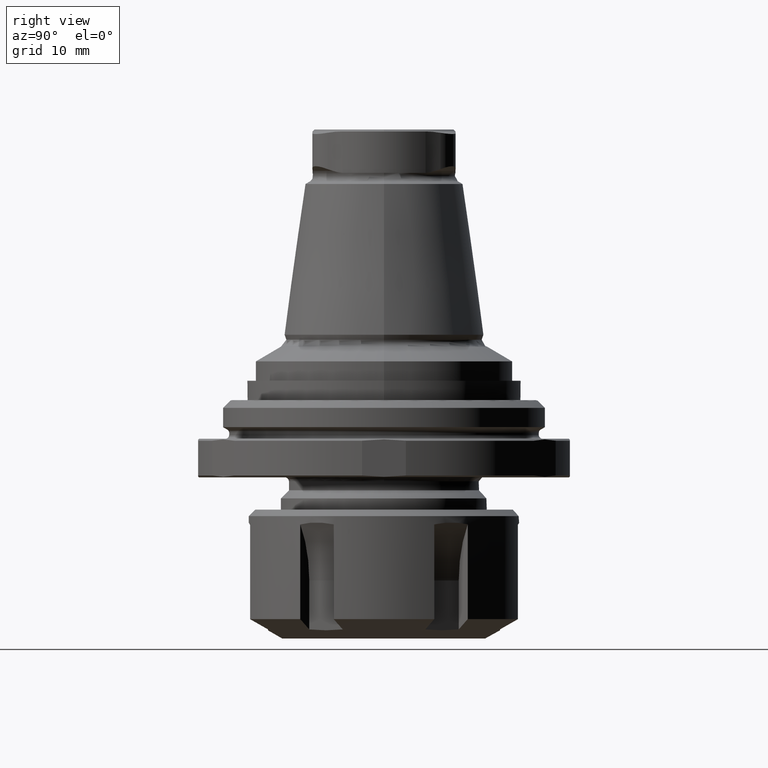
[diagram: clean part render]
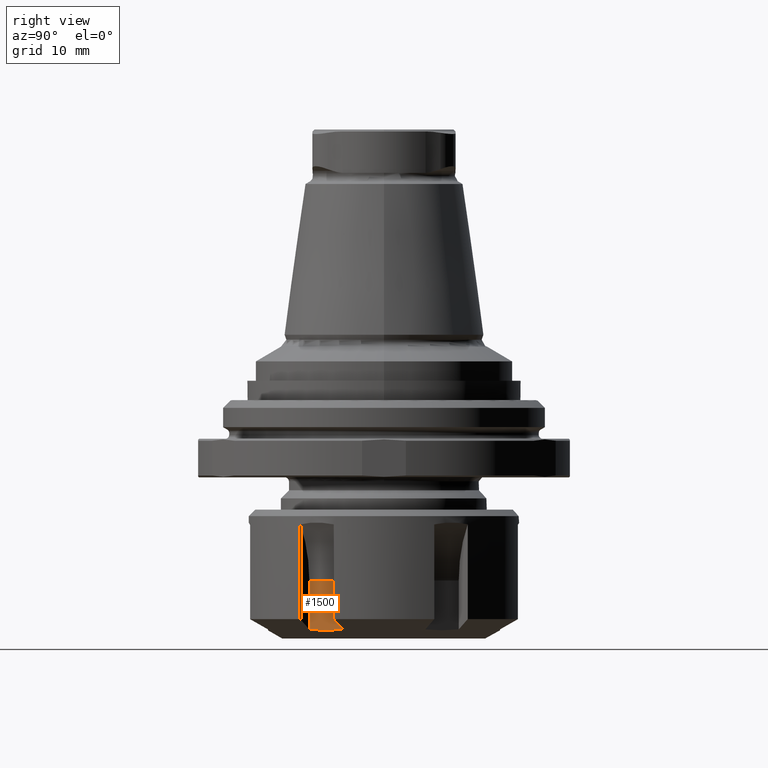
[diagram: same view with one face highlighted and labeled with its STEP entity id]
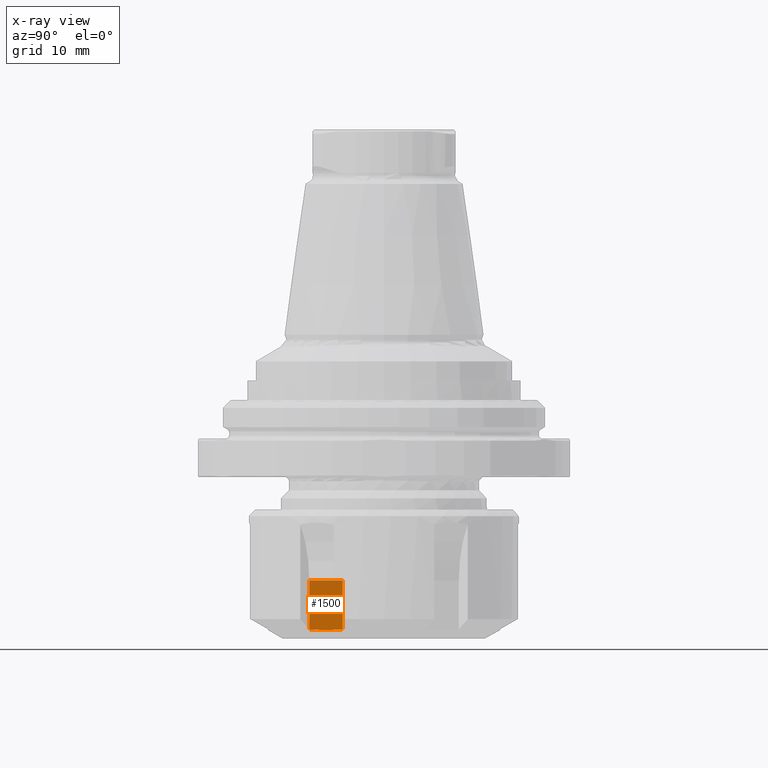
[diagram: x-ray of the same camera — body ghosted, the highlighted face saturated]
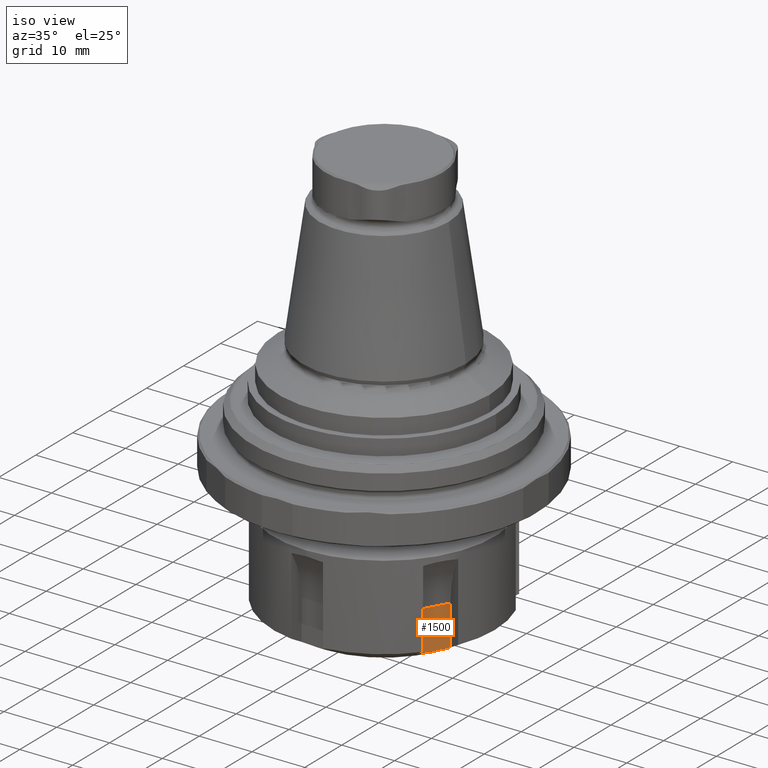
[diagram: same view with one face highlighted and labeled with its STEP entity id]
A machine part, right view. The second image highlights one B-rep face of the part: STEP entity #1500.
The next image is the same camera in x-ray: the body ghosted, the highlighted face saturated — about 0% of this face is hidden behind the body in this view.
A second angle (iso view) of the same face is appended — the face is thin or edge-on in the first view.
In plain terms, the highlighted planar face has unit normal (-0.866, 0.5, 0).
Its self-contained STEP definition (entity closure, byte-faithful):
#46=B_SPLINE_CURVE_WITH_KNOTS('',3,(#2461,#2462,#2463,#2464),
 .UNSPECIFIED.,.F.,.F.,(4,4),(0.00754768016302608,0.0105290968518202),
 .UNSPECIFIED.);
#47=B_SPLINE_CURVE_WITH_KNOTS('',3,(#2466,#2467,#2468,#2469),
 .UNSPECIFIED.,.F.,.F.,(4,4),(0.00454577362923761,0.00754768016302608),
 .UNSPECIFIED.);
#91=LINE('',#2247,#149);
#100=LINE('',#2338,#158);
#117=LINE('',#2452,#175);
#149=VECTOR('',#1811,1000.);
#158=VECTOR('',#1856,1000.);
#175=VECTOR('',#1899,1000.);
#223=PLANE('',#1636);
#383=ORIENTED_EDGE('',*,*,#750,.T.);
#384=ORIENTED_EDGE('',*,*,#722,.F.);
#385=ORIENTED_EDGE('',*,*,#783,.F.);
#386=ORIENTED_EDGE('',*,*,#786,.F.);
#387=ORIENTED_EDGE('',*,*,#787,.F.);
#722=EDGE_CURVE('',#936,#938,#91,.T.);
#750=EDGE_CURVE('',#962,#938,#100,.T.);
#783=EDGE_CURVE('',#984,#936,#117,.T.);
#786=EDGE_CURVE('',#986,#984,#46,.T.);
#787=EDGE_CURVE('',#962,#986,#47,.T.);
#936=VERTEX_POINT('',#2245);
#938=VERTEX_POINT('',#2248);
#962=VERTEX_POINT('',#2335);
#984=VERTEX_POINT('',#2453);
#986=VERTEX_POINT('',#2465);
#1199=EDGE_LOOP('',(#383,#384,#385,#386,#387));
#1339=FACE_BOUND('',#1199,.T.);
#1500=ADVANCED_FACE('',(#1339),#223,.F.);
#1636=AXIS2_PLACEMENT_3D('',#2460,#1901,#1902);
#1811=DIRECTION('',(0.499999999999998,0.866025403784439,0.));
#1856=DIRECTION('',(3.88594079114095E-16,-2.24354896182016E-16,1.));
#1899=DIRECTION('',(3.88594079114095E-16,-2.24354896182016E-16,1.));
#1901=DIRECTION('',(-0.86602540378444,0.499999999999999,4.48709792364034E-16));
#1902=DIRECTION('',(3.88594079114095E-16,-2.24354896182016E-16,1.));
#2245=CARTESIAN_POINT('',(14.0884572681199,-11.5980762113533,-23.));
#2247=CARTESIAN_POINT('',(14.0884572681199,-11.5980762113533,-23.));
#2248=CARTESIAN_POINT('',(17.0884572681199,-6.40192378864666,-23.));
#2335=CARTESIAN_POINT('',(17.0884572681199,-6.40192378864665,-30.5887019809583));
#2338=CARTESIAN_POINT('',(17.0884572681199,-6.40192378864665,-30.7320508956909));
#2452=CARTESIAN_POINT('',(14.0884572681199,-11.5980762113533,-30.7320508956909));
#2453=CARTESIAN_POINT('',(14.0884572681199,-11.5980762113533,-30.5887019809583));
#2460=CARTESIAN_POINT('',(14.0884572681199,-11.5980762113533,-30.7320508956909));
#2461=CARTESIAN_POINT('',(15.5884572681199,-8.99999999999997,-30.7320508956909));
#2462=CARTESIAN_POINT('',(15.0899790992942,-9.86338951487009,-30.7320508956909));
#2463=CARTESIAN_POINT('',(14.5874221342859,-10.7338437119619,-30.6834212842415));
#2464=CARTESIAN_POINT('',(14.0884572681199,-11.5980762113533,-30.5887019809583));
#2465=CARTESIAN_POINT('',(15.5884572681199,-8.99999999999997,-30.7320508956909));
#2466=CARTESIAN_POINT('',(17.0884572681199,-6.40192378864666,-30.5887019809583));
#2467=CARTESIAN_POINT('',(16.5903212332731,-7.26472071008218,-30.6832639458588));
#2468=CARTESIAN_POINT('',(16.0903612379921,-8.13067682366083,-30.7320508956909));
#2469=CARTESIAN_POINT('',(15.5884572681199,-8.99999999999998,-30.7320508956909));